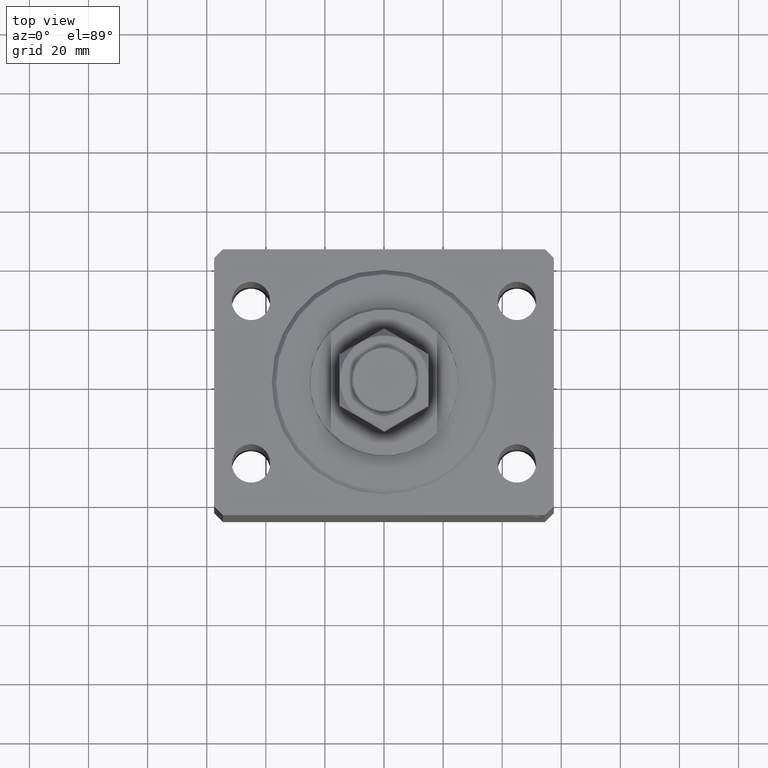
[diagram: clean part render]
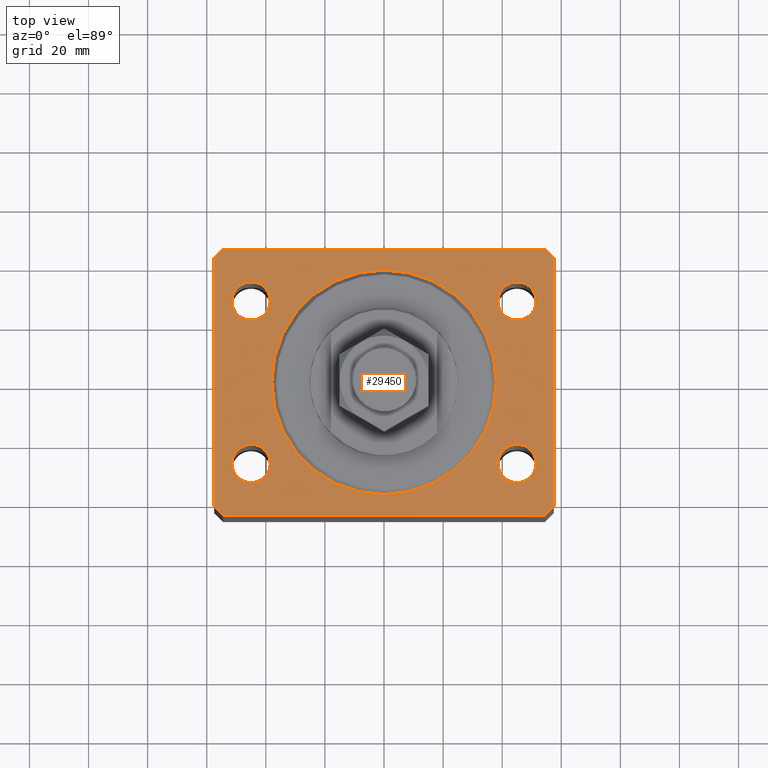
[diagram: same view with one face highlighted and labeled with its STEP entity id]
A machine part, top view. The second image highlights one B-rep face of the part: STEP entity #29450.
In plain terms, the highlighted planar face has unit normal (0, 0, 1).
Its self-contained STEP definition (entity closure, byte-faithful):
#95 = DIRECTION ( 'NONE',  ( 1.000000000000000000, 0.000000000000000000, 0.000000000000000000 ) ) ;
#136 = VERTEX_POINT ( 'NONE', #39592 ) ;
#371 = CARTESIAN_POINT ( 'NONE',  ( -57.50000000000000711, -42.00000000000000711, 0.000000000000000000 ) ) ;
#548 = DIRECTION ( 'NONE',  ( -0.7071067811865369146, 0.7071067811865581199, 0.000000000000000000 ) ) ;
#740 = DIRECTION ( 'NONE',  ( 1.000000000000000000, 0.000000000000000000, 0.000000000000000000 ) ) ;
#777 = DIRECTION ( 'NONE',  ( 1.000000000000000000, 0.000000000000000000, 0.000000000000000000 ) ) ;
#895 = VERTEX_POINT ( 'NONE', #3607 ) ;
#1139 = CARTESIAN_POINT ( 'NONE',  ( -51.50000000000000000, 27.49999999999999645, 0.000000000000000000 ) ) ;
#2018 = CARTESIAN_POINT ( 'NONE',  ( 57.50000000000055422, 41.99999999999997868, 0.000000000000000000 ) ) ;
#2419 = DIRECTION ( 'NONE',  ( 0.000000000000000000, 0.000000000000000000, 1.000000000000000000 ) ) ;
#2631 = CIRCLE ( 'NONE', #15363, 6.499999999999999112 ) ;
#2638 = CARTESIAN_POINT ( 'NONE',  ( 44.99999999999998579, -27.50000000000000355, 0.000000000000000000 ) ) ;
#2691 = LINE ( 'NONE', #17708, #30264 ) ;
#3070 = ORIENTED_EDGE ( 'NONE', *, *, #33664, .F. ) ;
#3318 = EDGE_LOOP ( 'NONE', ( #5801, #8510 ) ) ;
#3390 = DIRECTION ( 'NONE',  ( 0.000000000000000000, 0.000000000000000000, 1.000000000000000000 ) ) ;
#3607 = CARTESIAN_POINT ( 'NONE',  ( -38.50000000000000000, 27.49999999999999645, 0.000000000000000000 ) ) ;
#3760 = EDGE_CURVE ( 'NONE', #15770, #11493, #14486, .T. ) ;
#3767 = ORIENTED_EDGE ( 'NONE', *, *, #46313, .F. ) ;
#3822 = CARTESIAN_POINT ( 'NONE',  ( 44.99999999999998579, -27.50000000000000355, 0.000000000000000000 ) ) ;
#3984 = ORIENTED_EDGE ( 'NONE', *, *, #3760, .F. ) ;
#4071 = LINE ( 'NONE', #4307, #20592 ) ;
#4307 = CARTESIAN_POINT ( 'NONE',  ( -57.50000000000000711, -42.00000000000000711, 0.000000000000000000 ) ) ;
#4333 = CIRCLE ( 'NONE', #38725, 6.499999999999999112 ) ;
#4615 = CARTESIAN_POINT ( 'NONE',  ( -44.99999999999998579, -27.50000000000000355, 0.000000000000000000 ) ) ;
#5152 = ORIENTED_EDGE ( 'NONE', *, *, #31471, .F. ) ;
#5297 = DIRECTION ( 'NONE',  ( 1.000000000000000000, 0.000000000000000000, 0.000000000000000000 ) ) ;
#5610 = EDGE_CURVE ( 'NONE', #38591, #18029, #27948, .T. ) ;
#5801 = ORIENTED_EDGE ( 'NONE', *, *, #5610, .F. ) ;
#5842 = AXIS2_PLACEMENT_3D ( 'NONE', #40017, #42611, #21358 ) ;
#6062 = AXIS2_PLACEMENT_3D ( 'NONE', #3822, #10637, #95 ) ;
#6446 = CARTESIAN_POINT ( 'NONE',  ( 54.50000000000000711, -44.99999999999998579, 0.000000000000000000 ) ) ;
#8069 = CIRCLE ( 'NONE', #46174, 6.499999999999999112 ) ;
#8182 = DIRECTION ( 'NONE',  ( 0.7071067811865483499, 0.7071067811865466846, 0.000000000000000000 ) ) ;
#8264 = CARTESIAN_POINT ( 'NONE',  ( 57.50000000000055422, 41.99999999999997868, 0.000000000000000000 ) ) ;
#8510 = ORIENTED_EDGE ( 'NONE', *, *, #45079, .F. ) ;
#8809 = DIRECTION ( 'NONE',  ( 0.000000000000000000, 0.000000000000000000, 1.000000000000000000 ) ) ;
#8826 = LINE ( 'NONE', #15421, #35377 ) ;
#8831 = EDGE_LOOP ( 'NONE', ( #3767, #27614 ) ) ;
#9000 = EDGE_CURVE ( 'NONE', #13698, #32213, #8826, .T. ) ;
#9214 = DIRECTION ( 'NONE',  ( 1.000000000000000000, 0.000000000000000000, 0.000000000000000000 ) ) ;
#9408 = FACE_BOUND ( 'NONE', #23190, .T. ) ;
#9488 = EDGE_CURVE ( 'NONE', #895, #12044, #16003, .T. ) ;
#10127 = VERTEX_POINT ( 'NONE', #22222 ) ;
#10150 = CARTESIAN_POINT ( 'NONE',  ( 54.50000000000059686, 45.00000000000002842, 0.000000000000000000 ) ) ;
#10449 = EDGE_CURVE ( 'NONE', #40155, #28769, #18612, .T. ) ;
#10637 = DIRECTION ( 'NONE',  ( 0.000000000000000000, 0.000000000000000000, 1.000000000000000000 ) ) ;
#10717 = AXIS2_PLACEMENT_3D ( 'NONE', #2638, #41968, #16965 ) ;
#10746 = AXIS2_PLACEMENT_3D ( 'NONE', #4615, #2419, #9214 ) ;
#11493 = VERTEX_POINT ( 'NONE', #45338 ) ;
#12044 = VERTEX_POINT ( 'NONE', #1139 ) ;
#12351 = DIRECTION ( 'NONE',  ( 1.000000000000000000, 1.273191542001326317E-16, 0.000000000000000000 ) ) ;
#12619 = EDGE_CURVE ( 'NONE', #42762, #13698, #4071, .T. ) ;
#12781 = ORIENTED_EDGE ( 'NONE', *, *, #10449, .T. ) ;
#12851 = ORIENTED_EDGE ( 'NONE', *, *, #9488, .F. ) ;
#13278 = DIRECTION ( 'NONE',  ( 1.000000000000000000, 0.000000000000000000, 0.000000000000000000 ) ) ;
#13472 = CARTESIAN_POINT ( 'NONE',  ( 51.50000000000000000, 27.49999999999999289, 0.000000000000000000 ) ) ;
#13698 = VERTEX_POINT ( 'NONE', #40636 ) ;
#14216 = CARTESIAN_POINT ( 'NONE',  ( -45.00000000000000000, 27.49999999999999645, 0.000000000000000000 ) ) ;
#14486 = CIRCLE ( 'NONE', #10717, 6.499999999999999112 ) ;
#14519 = CARTESIAN_POINT ( 'NONE',  ( -51.49999999999998579, -27.50000000000000355, 0.000000000000000000 ) ) ;
#14593 = CARTESIAN_POINT ( 'NONE',  ( -38.49999999999998579, -27.50000000000000355, 0.000000000000000000 ) ) ;
#14865 = DIRECTION ( 'NONE',  ( 0.000000000000000000, 0.000000000000000000, 1.000000000000000000 ) ) ;
#15316 = CARTESIAN_POINT ( 'NONE',  ( -45.00000000000000000, 27.49999999999999645, 0.000000000000000000 ) ) ;
#15363 = AXIS2_PLACEMENT_3D ( 'NONE', #14216, #3390, #13278 ) ;
#15421 = CARTESIAN_POINT ( 'NONE',  ( -54.50000000000000711, -45.00000000000000000, 0.000000000000000000 ) ) ;
#15770 = VERTEX_POINT ( 'NONE', #45081 ) ;
#15844 = VERTEX_POINT ( 'NONE', #34935 ) ;
#16003 = CIRCLE ( 'NONE', #23442, 6.499999999999999112 ) ;
#16010 = EDGE_CURVE ( 'NONE', #136, #42762, #31691, .T. ) ;
#16760 = ORIENTED_EDGE ( 'NONE', *, *, #36899, .T. ) ;
#16872 = VECTOR ( 'NONE', #8182, 1000.000000000000000 ) ;
#16935 = EDGE_LOOP ( 'NONE', ( #16760, #36117, #22891, #33081, #40024, #35175, #18807, #12781 ) ) ;
#16965 = DIRECTION ( 'NONE',  ( 1.000000000000000000, 0.000000000000000000, 0.000000000000000000 ) ) ;
#17519 = VERTEX_POINT ( 'NONE', #13472 ) ;
#17708 = CARTESIAN_POINT ( 'NONE',  ( -54.49999999999999289, 45.00000000000000000, 0.000000000000000000 ) ) ;
#18029 = VERTEX_POINT ( 'NONE', #14519 ) ;
#18612 = LINE ( 'NONE', #8264, #43613 ) ;
#18767 = CARTESIAN_POINT ( 'NONE',  ( 54.50000000000000711, -44.99999999999998579, 0.000000000000000000 ) ) ;
#18800 = CIRCLE ( 'NONE', #6062, 6.499999999999999112 ) ;
#18807 = ORIENTED_EDGE ( 'NONE', *, *, #37570, .T. ) ;
#19519 = PLANE ( 'NONE',  #22488 ) ;
#19905 = ORIENTED_EDGE ( 'NONE', *, *, #30066, .F. ) ;
#20442 = FACE_OUTER_BOUND ( 'NONE', #16935, .T. ) ;
#20592 = VECTOR ( 'NONE', #40111, 1000.000000000000114 ) ;
#21358 = DIRECTION ( 'NONE',  ( 1.000000000000000000, 0.000000000000000000, 0.000000000000000000 ) ) ;
#21415 = VERTEX_POINT ( 'NONE', #29882 ) ;
#22222 = CARTESIAN_POINT ( 'NONE',  ( -54.49999999999999289, 45.00000000000000000, 0.000000000000000000 ) ) ;
#22488 = AXIS2_PLACEMENT_3D ( 'NONE', #33748, #23247, #30944 ) ;
#22821 = CARTESIAN_POINT ( 'NONE',  ( 0.000000000000000000, 0.000000000000000000, 0.000000000000000000 ) ) ;
#22832 = VECTOR ( 'NONE', #33988, 1000.000000000000000 ) ;
#22891 = ORIENTED_EDGE ( 'NONE', *, *, #16010, .T. ) ;
#22901 = AXIS2_PLACEMENT_3D ( 'NONE', #22821, #37064, #32415 ) ;
#23190 = EDGE_LOOP ( 'NONE', ( #25158, #5152 ) ) ;
#23247 = DIRECTION ( 'NONE',  ( 0.000000000000000000, 0.000000000000000000, 1.000000000000000000 ) ) ;
#23442 = AXIS2_PLACEMENT_3D ( 'NONE', #15316, #14865, #777 ) ;
#23727 = CARTESIAN_POINT ( 'NONE',  ( 57.50000000000000711, -41.99999999999998579, 0.000000000000000000 ) ) ;
#24267 = VERTEX_POINT ( 'NONE', #24954 ) ;
#24954 = CARTESIAN_POINT ( 'NONE',  ( 57.50000000000000711, -41.99999999999998579, 0.000000000000000000 ) ) ;
#25158 = ORIENTED_EDGE ( 'NONE', *, *, #44764, .F. ) ;
#26024 = CIRCLE ( 'NONE', #5842, 38.00000000000000000 ) ;
#26745 = LINE ( 'NONE', #23727, #22832 ) ;
#27188 = FACE_BOUND ( 'NONE', #31279, .T. ) ;
#27363 = CIRCLE ( 'NONE', #22901, 38.00000000000000000 ) ;
#27614 = ORIENTED_EDGE ( 'NONE', *, *, #36670, .F. ) ;
#27935 = LINE ( 'NONE', #10150, #33270 ) ;
#27948 = CIRCLE ( 'NONE', #10746, 6.499999999999999112 ) ;
#28421 = CARTESIAN_POINT ( 'NONE',  ( -57.49999999999998579, 42.00000000000000711, 0.000000000000000000 ) ) ;
#28769 = VERTEX_POINT ( 'NONE', #33391 ) ;
#29450 = ADVANCED_FACE ( 'NONE', ( #41467, #41241, #27188, #9408, #44975, #20442 ), #19519, .T. ) ;
#29776 = DIRECTION ( 'NONE',  ( -1.000000000000000000, -2.546383084002638829E-16, 0.000000000000000000 ) ) ;
#29882 = CARTESIAN_POINT ( 'NONE',  ( 38.00000000000000000, 0.000000000000000000, 0.000000000000000000 ) ) ;
#30066 = EDGE_CURVE ( 'NONE', #11493, #15770, #18800, .T. ) ;
#30264 = VECTOR ( 'NONE', #31958, 1000.000000000000000 ) ;
#30944 = DIRECTION ( 'NONE',  ( 1.000000000000000000, 0.000000000000000000, -0.000000000000000000 ) ) ;
#31279 = EDGE_LOOP ( 'NONE', ( #19905, #3984 ) ) ;
#31471 = EDGE_CURVE ( 'NONE', #15844, #17519, #35980, .T. ) ;
#31683 = DIRECTION ( 'NONE',  ( 1.000000000000000000, 0.000000000000000000, 0.000000000000000000 ) ) ;
#31691 = LINE ( 'NONE', #28421, #44558 ) ;
#31958 = DIRECTION ( 'NONE',  ( -0.7071067811865483499, -0.7071067811865466846, 0.000000000000000000 ) ) ;
#32115 = EDGE_CURVE ( 'NONE', #10127, #136, #2691, .T. ) ;
#32213 = VERTEX_POINT ( 'NONE', #6446 ) ;
#32360 = CARTESIAN_POINT ( 'NONE',  ( -38.00000000000000000, 4.653657836759941941E-15, 0.000000000000000000 ) ) ;
#32415 = DIRECTION ( 'NONE',  ( 1.000000000000000000, 0.000000000000000000, 0.000000000000000000 ) ) ;
#32807 = DIRECTION ( 'NONE',  ( 0.000000000000000000, 0.000000000000000000, 1.000000000000000000 ) ) ;
#33081 = ORIENTED_EDGE ( 'NONE', *, *, #12619, .T. ) ;
#33270 = VECTOR ( 'NONE', #29776, 1000.000000000000000 ) ;
#33391 = CARTESIAN_POINT ( 'NONE',  ( 54.50000000000059686, 45.00000000000002842, 0.000000000000000000 ) ) ;
#33664 = EDGE_CURVE ( 'NONE', #12044, #895, #2631, .T. ) ;
#33748 = CARTESIAN_POINT ( 'NONE',  ( 0.000000000000000000, 0.000000000000000000, 0.000000000000000000 ) ) ;
#33988 = DIRECTION ( 'NONE',  ( 6.443258625056715108E-15, 1.000000000000000000, 0.000000000000000000 ) ) ;
#34718 = EDGE_LOOP ( 'NONE', ( #12851, #3070 ) ) ;
#34935 = CARTESIAN_POINT ( 'NONE',  ( 38.50000000000000000, 27.49999999999999289, 0.000000000000000000 ) ) ;
#35175 = ORIENTED_EDGE ( 'NONE', *, *, #37155, .T. ) ;
#35377 = VECTOR ( 'NONE', #12351, 1000.000000000000000 ) ;
#35980 = CIRCLE ( 'NONE', #44941, 6.499999999999999112 ) ;
#36117 = ORIENTED_EDGE ( 'NONE', *, *, #32115, .T. ) ;
#36260 = LINE ( 'NONE', #18767, #16872 ) ;
#36670 = EDGE_CURVE ( 'NONE', #36919, #21415, #27363, .T. ) ;
#36899 = EDGE_CURVE ( 'NONE', #28769, #10127, #27935, .T. ) ;
#36919 = VERTEX_POINT ( 'NONE', #32360 ) ;
#37064 = DIRECTION ( 'NONE',  ( 0.000000000000000000, 0.000000000000000000, 1.000000000000000000 ) ) ;
#37155 = EDGE_CURVE ( 'NONE', #32213, #24267, #36260, .T. ) ;
#37227 = CARTESIAN_POINT ( 'NONE',  ( 45.00000000000000000, 27.49999999999999289, 0.000000000000000000 ) ) ;
#37570 = EDGE_CURVE ( 'NONE', #24267, #40155, #26745, .T. ) ;
#38591 = VERTEX_POINT ( 'NONE', #14593 ) ;
#38725 = AXIS2_PLACEMENT_3D ( 'NONE', #40871, #8809, #5297 ) ;
#38932 = DIRECTION ( 'NONE',  ( 0.000000000000000000, 0.000000000000000000, 1.000000000000000000 ) ) ;
#39592 = CARTESIAN_POINT ( 'NONE',  ( -57.49999999999998579, 42.00000000000000711, 0.000000000000000000 ) ) ;
#40017 = CARTESIAN_POINT ( 'NONE',  ( 0.000000000000000000, 0.000000000000000000, 0.000000000000000000 ) ) ;
#40024 = ORIENTED_EDGE ( 'NONE', *, *, #9000, .T. ) ;
#40111 = DIRECTION ( 'NONE',  ( 0.7071067811865491270, -0.7071067811865459074, 0.000000000000000000 ) ) ;
#40155 = VERTEX_POINT ( 'NONE', #2018 ) ;
#40636 = CARTESIAN_POINT ( 'NONE',  ( -54.50000000000000711, -45.00000000000000000, 0.000000000000000000 ) ) ;
#40871 = CARTESIAN_POINT ( 'NONE',  ( 45.00000000000000000, 27.49999999999999289, 0.000000000000000000 ) ) ;
#41241 = FACE_BOUND ( 'NONE', #3318, .T. ) ;
#41467 = FACE_BOUND ( 'NONE', #8831, .T. ) ;
#41968 = DIRECTION ( 'NONE',  ( 0.000000000000000000, 0.000000000000000000, 1.000000000000000000 ) ) ;
#41983 = CARTESIAN_POINT ( 'NONE',  ( -44.99999999999998579, -27.50000000000000355, 0.000000000000000000 ) ) ;
#42611 = DIRECTION ( 'NONE',  ( 0.000000000000000000, 0.000000000000000000, 1.000000000000000000 ) ) ;
#42762 = VERTEX_POINT ( 'NONE', #371 ) ;
#43613 = VECTOR ( 'NONE', #548, 1000.000000000000000 ) ;
#44558 = VECTOR ( 'NONE', #45720, 1000.000000000000000 ) ;
#44764 = EDGE_CURVE ( 'NONE', #17519, #15844, #4333, .T. ) ;
#44941 = AXIS2_PLACEMENT_3D ( 'NONE', #37227, #32807, #740 ) ;
#44975 = FACE_BOUND ( 'NONE', #34718, .T. ) ;
#45079 = EDGE_CURVE ( 'NONE', #18029, #38591, #8069, .T. ) ;
#45081 = CARTESIAN_POINT ( 'NONE',  ( 38.49999999999998579, -27.50000000000000355, 0.000000000000000000 ) ) ;
#45338 = CARTESIAN_POINT ( 'NONE',  ( 51.49999999999998579, -27.50000000000000355, 0.000000000000000000 ) ) ;
#45720 = DIRECTION ( 'NONE',  ( -2.478176394252581141E-16, -1.000000000000000000, 0.000000000000000000 ) ) ;
#46174 = AXIS2_PLACEMENT_3D ( 'NONE', #41983, #38932, #31683 ) ;
#46313 = EDGE_CURVE ( 'NONE', #21415, #36919, #26024, .T. ) ;